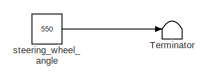
[diagram: root canvas - part 1/3, top left region]
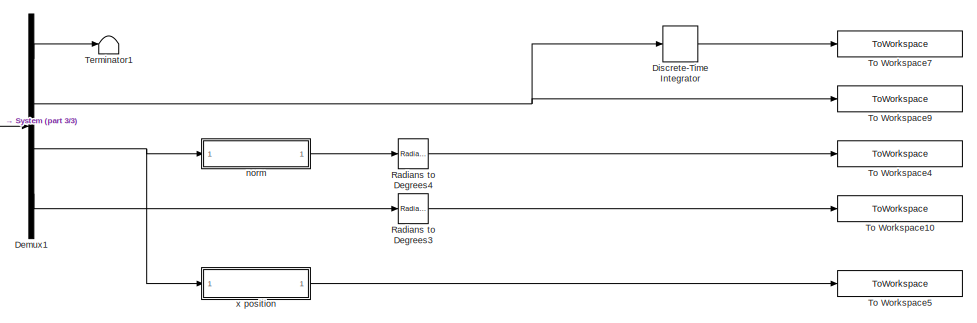
[diagram: root canvas - part 2/3, right side, full height]
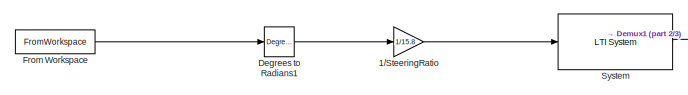
[diagram: root canvas - part 3/3, middle left region]
MODEL slx_966799884f39
KIND model
CONFIG AbsTol = auto
CONFIG FixedStep = 0.01
CONFIG MaxStep = auto
CONFIG MinStep = auto
CONFIG PostLoadFcn = , if any(exist('dsrtsu_mdlpostloadfcn', 'file') == [2, 3, 6]), try dsrtsu_mdlpostloadfcn('Execute', bdroot); catch fprintf('Error in PostLoadFcn (dsrtsu_mdlpostloadfcn) for model "%s":\n %s\n', bdroot, lasterr); end, end, \n
CONFIG RelTol = 1e-3
CONFIG SampleTimeConstraint = Unconstrained
CONFIG Solver = FixedStepDiscrete
CONFIG SolverMode = Auto
CONFIG SolverName = FixedStepDiscrete
CONFIG StartTime = 0.0
CONFIG StopTime = 42
BLOCK [Gain] 1//SteeringRatio
  Gain = 1/15.8
  OutDataTypeStr = Inherit: Inherit via internal rule
  ParamDataTypeStr = Inherit: Inherit via internal rule
  SaturateOnIntegerOverflow = off
BLOCK [Reference] Degrees to Radians1  REF=simulink_extras/Transformations/Degrees to
Radians
  Ports = [1, 1]
  SourceBlock = simulink_extras/Transformations/Degrees to\nRadians
  SourceType = DegreesToRadians
BLOCK [Demux] Demux1
  DisplayOption = bar
  Ports = [1, 4]
BLOCK [DiscreteIntegrator] Discrete-Time Integrator
  ICPrevOutput = DiscIntNeverNeededParam
  ICPrevScaledInput = DiscIntNeverNeededParam
  InitialConditionSetting = State (most efficient)
  Ports = [1, 1]
  SampleTime = 0.01
BLOCK [FromWorkspace] From Workspace
  SampleTime = 0.01
  VariableName = steering_wheel
  ZeroCross = on
BLOCK [Reference] Radians to Degrees3  REF=simulink_extras/Transformations/Radians
to Degrees
  Ports = [1, 1]
  SourceBlock = simulink_extras/Transformations/Radians\nto Degrees
  SourceType = RadiansToDegrees
BLOCK [Reference] Radians to Degrees4  REF=simulink_extras/Transformations/Radians
to Degrees
  Ports = [1, 1]
  SourceBlock = simulink_extras/Transformations/Radians\nto Degrees
  SourceType = RadiansToDegrees
BLOCK [Reference] System  REF=cstblocks/LTI System
  Ports = [1, 1]
  SourceBlock = cstblocks/LTI System
  SourceType = LTI Block
BLOCK [Terminator] Terminator
BLOCK [Terminator] Terminator1
BLOCK [ToWorkspace] To Workspace10
  FixptAsFi = on
  MaxDataPoints = inf
  Ports = [1]
  SampleTime = -1
  Save2DSignal = 3-D array (concatenate along third dimension)
  SaveFormat = Timeseries
  VariableName = yaw_rate
BLOCK [ToWorkspace] To Workspace4
  FixptAsFi = on
  MaxDataPoints = inf
  Ports = [1]
  SampleTime = -1
  Save2DSignal = 3-D array (concatenate along third dimension)
  SaveFormat = Timeseries
  VariableName = heading
BLOCK [ToWorkspace] To Workspace5
  FixptAsFi = on
  MaxDataPoints = inf
  Ports = [1]
  SampleTime = -1
  Save2DSignal = 3-D array (concatenate along third dimension)
  SaveFormat = Timeseries
  VariableName = x_simulation
BLOCK [ToWorkspace] To Workspace7
  FixptAsFi = on
  MaxDataPoints = inf
  Ports = [1]
  SampleTime = -1
  Save2DSignal = 3-D array (concatenate along third dimension)
  SaveFormat = Timeseries
  VariableName = y_simulation
BLOCK [ToWorkspace] To Workspace9
  FixptAsFi = on
  MaxDataPoints = inf
  Ports = [1]
  SampleTime = -1
  Save2DSignal = 3-D array (concatenate along third dimension)
  SaveFormat = Timeseries
  VariableName = vy
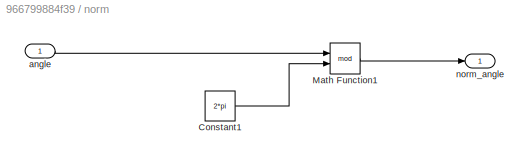
BLOCK [SubSystem] norm
  Ports = [1, 1]
  RequestExecContextInheritance = off
  Variant = off
BLOCK [Constant] norm/Constant1
  Value = 2*pi
BLOCK [Math] norm/Math Function1
  Operator = mod
  OutputSignalType = real
  Ports = [2, 1]
BLOCK [Inport] norm/angle
  IconDisplay = Port number
BLOCK [Outport] norm/norm_angle
  IconDisplay = Port number
BLOCK [Constant] steering_wheel_angle
  SampleTime = 0.01
  Value = 550
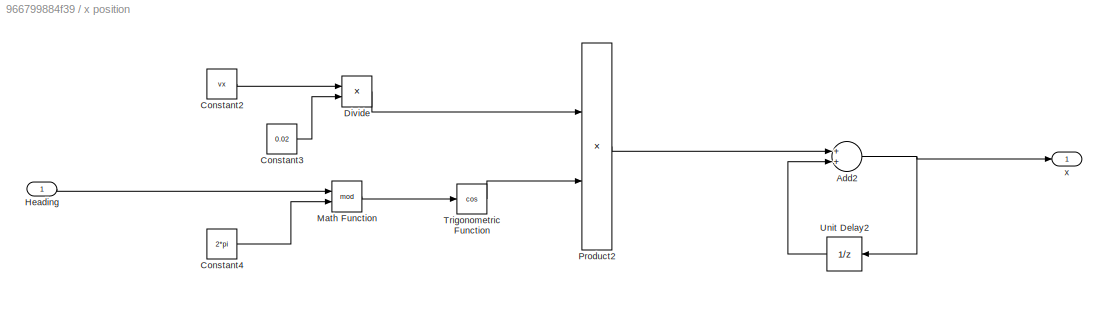
BLOCK [SubSystem] x position
  Ports = [1, 1]
  RequestExecContextInheritance = off
  Variant = off
BLOCK [Sum] x position/Add2
  InputSameDT = off
  OutDataTypeStr = Inherit: Inherit via internal rule
  Ports = [2, 1]
  SaturateOnIntegerOverflow = off
BLOCK [Constant] x position/Constant2
  Value = vx
BLOCK [Constant] x position/Constant3
  Value = 0.02
BLOCK [Constant] x position/Constant4
  Value = 2*pi
BLOCK [Product] x position/Divide
  InputSameDT = off
  Inputs = **
  OutDataTypeStr = Inherit: Inherit via internal rule
  Ports = [2, 1]
  RndMeth = Floor
  SaturateOnIntegerOverflow = off
BLOCK [Inport] x position/Heading
  IconDisplay = Port number
BLOCK [Math] x position/Math Function
  Operator = mod
  OutputSignalType = real
  Ports = [2, 1]
BLOCK [Product] x position/Product2
  InputSameDT = off
  OutDataTypeStr = Inherit: Inherit via internal rule
  Ports = [2, 1]
  RndMeth = Floor
  SaturateOnIntegerOverflow = off
BLOCK [Trigonometry] x position/Trigonometric Function
  Operator = cos
  Ports = [1, 1]
BLOCK [UnitDelay] x position/Unit Delay2
  InputProcessing = Elements as channels (sample based)
  SampleTime = -1
BLOCK [Outport] x position/x
  IconDisplay = Port number
LINE 1//SteeringRatio:1 -> System:1
LINE Degrees to Radians1:1 -> 1//SteeringRatio:1
LINE Demux1:1 -> Terminator1:1
NET Demux1:2 -> Discrete-Time Integrator:1, To Workspace9:1
NET Demux1:3 -> norm:1, x position:1
LINE Demux1:4 -> Radians to Degrees3:1
LINE Discrete-Time Integrator:1 -> To Workspace7:1
LINE From Workspace:1 -> Degrees to Radians1:1
LINE Radians to Degrees3:1 -> To Workspace10:1
LINE Radians to Degrees4:1 -> To Workspace4:1
LINE System:1 -> Demux1:1
LINE norm/Constant1:1 -> norm/Math Function1:2
LINE norm/Math Function1:1 -> norm/norm_angle:1
LINE norm/angle:1 -> norm/Math Function1:1
LINE norm:1 -> Radians to Degrees4:1
LINE steering_wheel_angle:1 -> Terminator:1
NET x position/Add2:1 -> x position/Unit Delay2:1, x position/x:1
LINE x position/Constant2:1 -> x position/Divide:1
LINE x position/Constant3:1 -> x position/Divide:2
LINE x position/Constant4:1 -> x position/Math Function:2
LINE x position/Divide:1 -> x position/Product2:1
LINE x position/Heading:1 -> x position/Math Function:1
LINE x position/Math Function:1 -> x position/Trigonometric Function:1
LINE x position/Product2:1 -> x position/Add2:1
LINE x position/Trigonometric Function:1 -> x position/Product2:2
LINE x position/Unit Delay2:1 -> x position/Add2:2
LINE x position:1 -> To Workspace5:1
note: NET lines group one-source signal fan-out (src -> all destinations, sorted); 1:1 wires keep LINE
